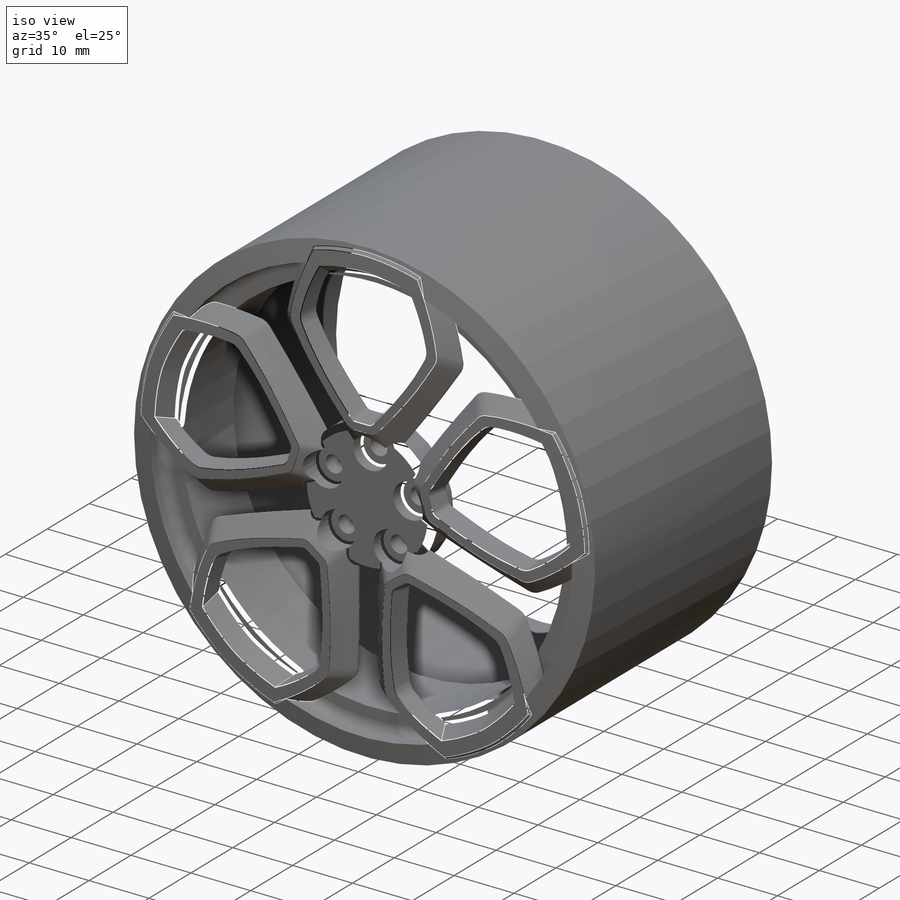
[diagram: iso view]
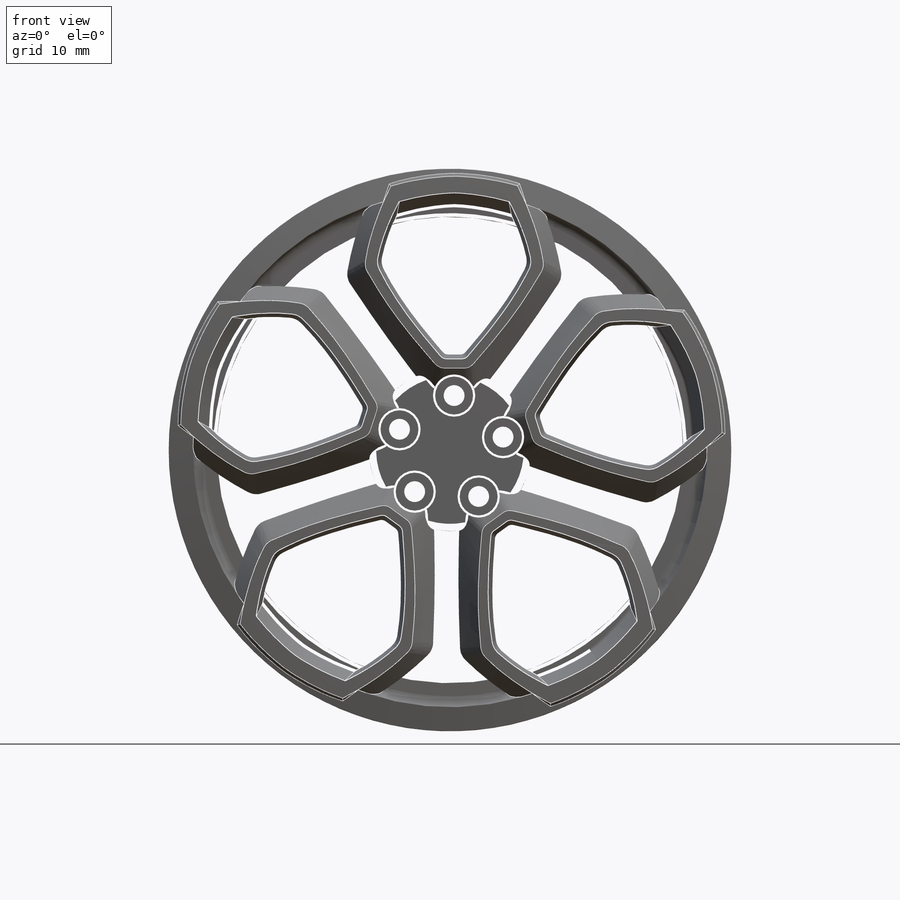
[diagram: front view]
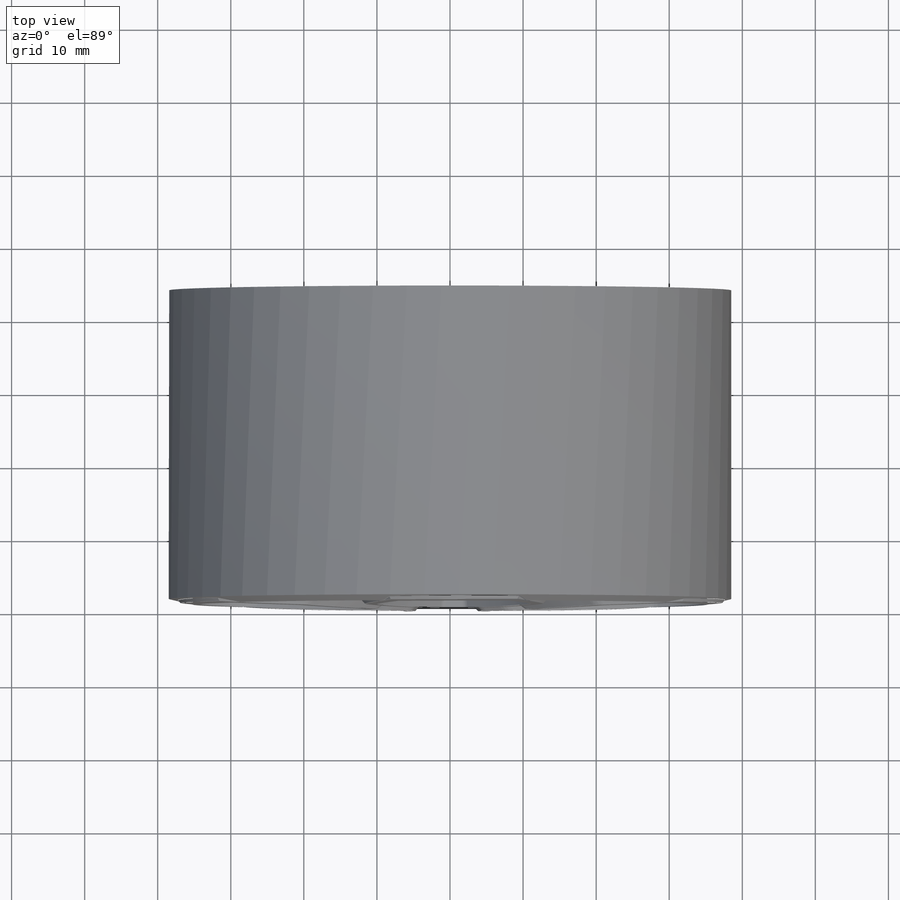
[diagram: top view]
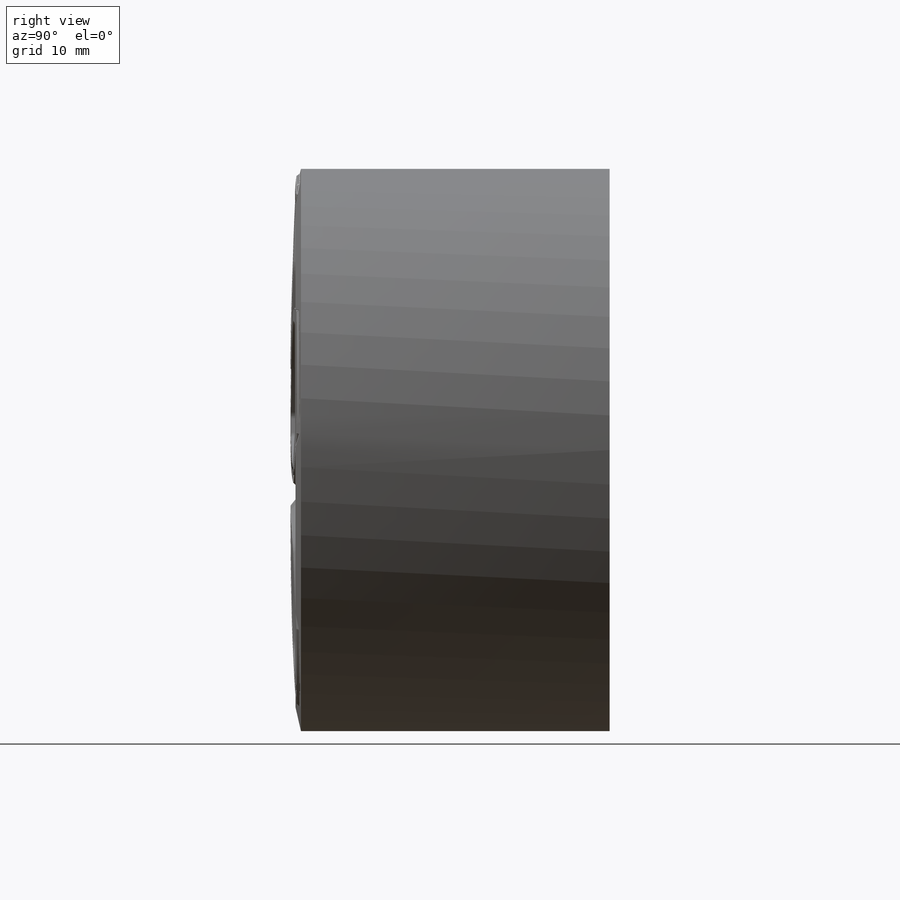
[diagram: right view]
SOLIDWORKS PART (.sldprt)
format: sldprt  version: not decoded by parser v0  size: 3,630,592 bytes
history: native  units: mm
features: fillet x16, sketch x9, plane x4, cut_extrude x3, revolve x2, pattern_circular x2, boolean_combine x2, material x1, cut_revolve x1, delete_body x1 (+8 scaffold rows collapsed)
feature tree (49):
  scaffold x8  (default folders/planes/origin — collapsed)
  material  "Alloy Steel"
  plane  "Plan de face"
  plane  "Plan de dessus"
  plane  "Plan de droite"
  sketch  "Esquisse1"  dims[D1=77.0mm D2=77.0mm]
  plane  "Plan1"  Offset=3.5mm
  sketch  "Esquisse2"
  sketch  "Esquisse3"  dims[D1=1.3mm]
  cut_extrude  "Enlèv. mat.-Extru.1"  Depth=3.5mm
  sketch  "Esquisse5"
  cut_revolve  "Enlèvement de matière-Révolution1"  Angle=360deg
  fillet  "Congé1"  Radius=2.5mm
  fillet  "Congé2"  Radius=3mm
  fillet  "Congé3"  Radius=2.5mm
  fillet  "Congé4"  Radius=1mm
  sketch  "Esquisse6"
  revolve  "Révolution1"  Angle=360deg
  pattern_circular  "Répétition circulaire1"  Count=5 Angle=72deg
  boolean_combine  "Combiner1"
  sketch  "Esquisse7"
  cut_extrude  "Enlèv. mat.-Extru.3"  Depth=2mm
  sketch  "Esquisse8"
  cut_extrude  "Enlèv. mat.-Extru.4"  Depth=8mm
  pattern_circular  "Répétition circulaire2"  Count=5 Angle=360deg
  sketch  "Esquisse9"  dims[D1=38.5mm D2=43.0mm]
  revolve  "Révolution2"  Angle=360deg
  delete_body  "Corps-Effacer/suppr1"
  boolean_combine  "Combiner2"
  fillet  "Congé10"  Radius=0.3mm
  fillet  "Congé11"  Radius=0.3mm
  fillet  "Congé15"  Radius=1.5mm
  fillet  "Congé16"  Radius=0.5mm
  fillet  "Congé17"  Radius=0.1mm
  fillet  "Congé18"  Radius=0.5mm
  fillet  "Congé20"  Radius=0.3mm
  fillet  "Congé21"  Radius=1mm
  fillet  "Congé23"  Radius=0.5mm
  sketch  "Esquisse10"
  fillet  "Congé27"  Radius=0.1mm
  fillet  "Congé28"  Radius=0.1mm
  fillet  "Congé29"  Radius=0.05mm
decode coverage: 27 of 36 modeling features carry decoded parameters
note: suppression state not decoded; provenance and decode notes live in map.json
